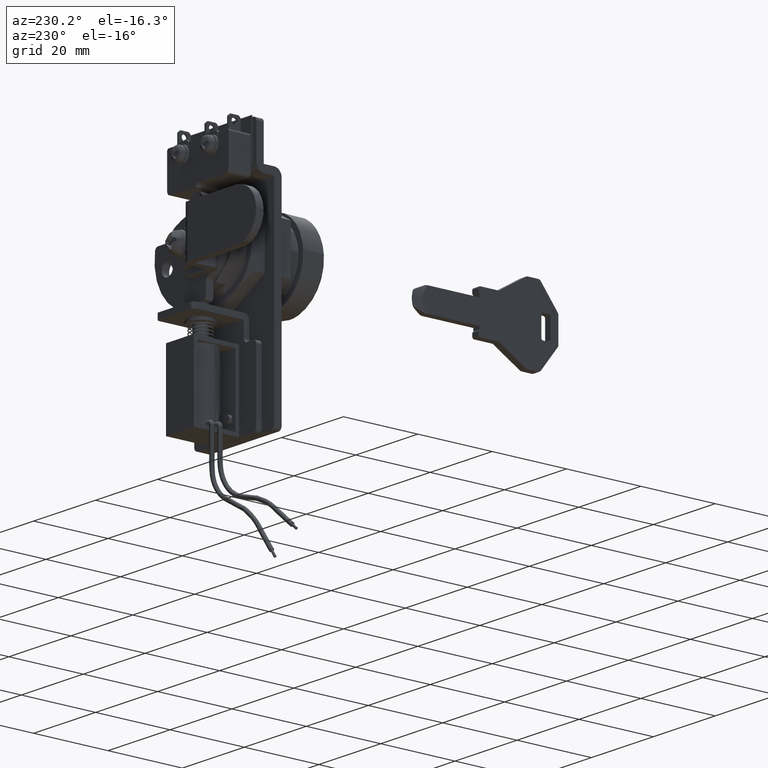
[diagram: clean part render]
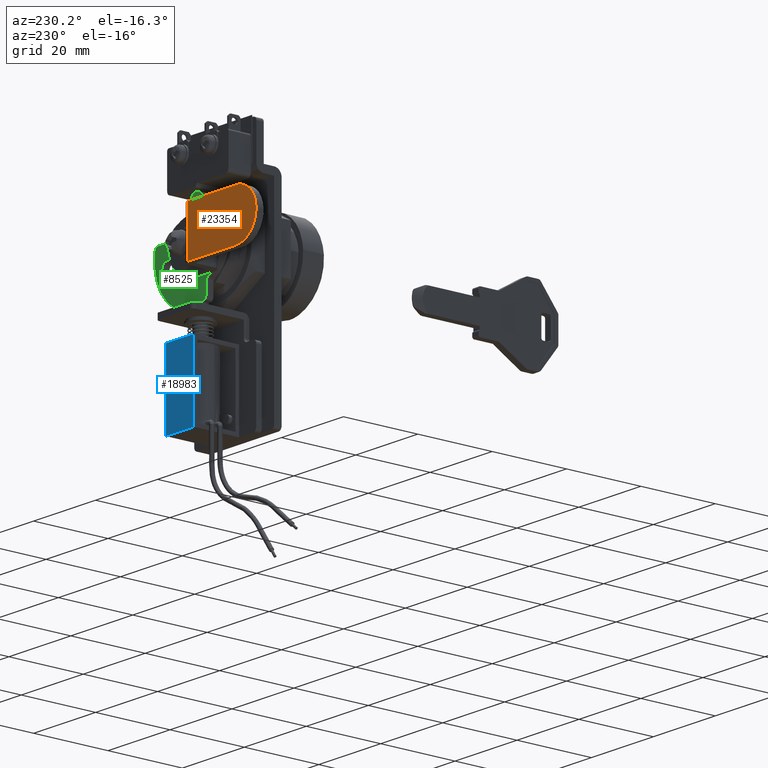
[diagram: same view with three faces highlighted in distinct colors, each labeled with its STEP entity id]
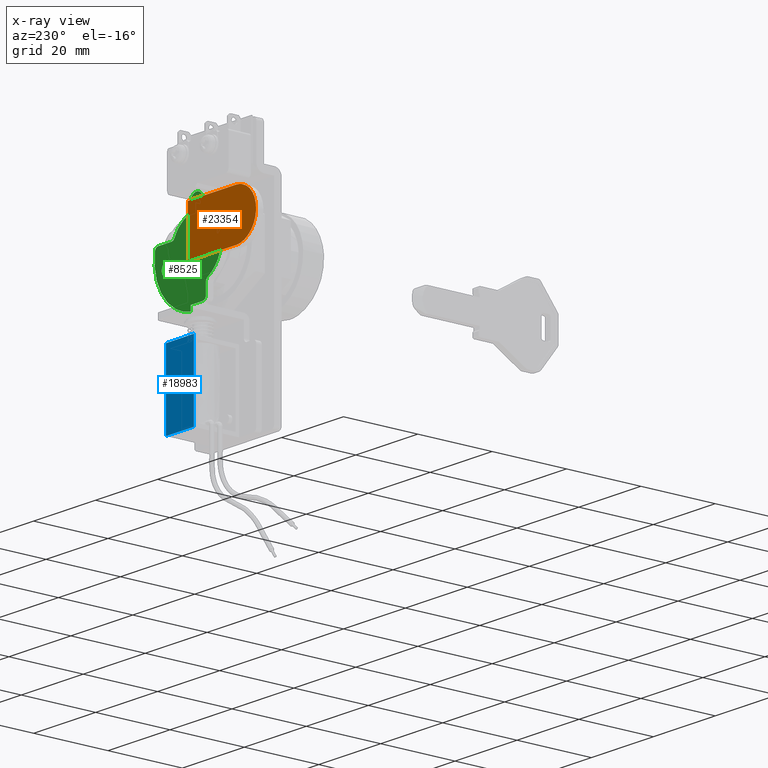
[diagram: x-ray of the same camera — body ghosted, the three highlighted faces saturated]
A machine part, auxiliary view with three faces highlighted in distinct colors.
The next image is the same camera in x-ray (body ghosted, the three faces saturated) — at least one of them is partly hidden behind the body in this view.
Their STEP definitions:

[orange] entity #23354 — the highlighted face is a freeform B-spline surface patch.
#23270=CARTESIAN_POINT('',(-7.999999999829917,28.500000000000000,-6.500000000006500));
#23271=VERTEX_POINT('',#23270);
#23285=CARTESIAN_POINT('',(-7.999999999829917,28.500000000000000,6.499999999993510));
#23286=VERTEX_POINT('',#23285);
#23287=CARTESIAN_POINT('',(-7.999999999829917,28.500000000000000,6.499999999993510));
#23288=CARTESIAN_POINT('',(-7.999999999829917,28.500000000000000,-6.500000000006500));
#23289=QUASI_UNIFORM_CURVE('',1,(#23287,#23288),.UNSPECIFIED.,.F.,.U.);
#23290=EDGE_CURVE('',#23286,#23271,#23289,.T.);
#23309=CARTESIAN_POINT('',(-6.901100042461718,28.500000000000000,7.149349974796989));
#23310=CARTESIAN_POINT('',(-6.901100042461718,28.500000000000000,-7.149350323497150));
#23311=CARTESIAN_POINT('',(-31.098900547453599,28.500000000000000,7.149349974796989));
#23312=CARTESIAN_POINT('',(-31.098900547453599,28.500000000000000,-7.149350323497150));
#23313=B_SPLINE_SURFACE_WITH_KNOTS('',1,1,((#23309,#23311),(#23310,#23312)),.UNSPECIFIED.,.F.,.F.,.U.,(2,2),(2,2),(0.0,14.298700298294140),(0.0,24.197800504991879),.UNSPECIFIED.);
#23314=CARTESIAN_POINT('',(-23.499999999999549,28.500000000000000,-6.500000000006500));
#23315=VERTEX_POINT('',#23314);
#23316=CARTESIAN_POINT('',(-23.499999999999549,28.500000000000000,-6.500000000006500));
#23317=CARTESIAN_POINT('',(-7.999999999829917,28.500000000000000,-6.500000000006500));
#23318=QUASI_UNIFORM_CURVE('',1,(#23316,#23317),.UNSPECIFIED.,.F.,.U.);
#23319=EDGE_CURVE('',#23315,#23271,#23318,.T.);
#23320=ORIENTED_EDGE('',*,*,#23319,.F.);
#23321=CARTESIAN_POINT('',(-23.499999999999549,28.500000000000000,6.499999999993510));
#23322=VERTEX_POINT('',#23321);
#23323=CARTESIAN_POINT('',(-23.499999999999549,28.500000000000000,-6.500000000006500));
#23324=CARTESIAN_POINT('',(-23.952013635505299,28.500000000000000,-6.500071330540076));
#23325=CARTESIAN_POINT('',(-24.723058648324191,28.499999999999950,-6.419220259435664));
#23326=CARTESIAN_POINT('',(-25.900967699437860,28.500000000000110,-6.077693807620869));
#23327=CARTESIAN_POINT('',(-26.835099821321251,28.499999999999890,-5.614625938347420));
#23328=CARTESIAN_POINT('',(-27.763479322157970,28.499999999999940,-4.943592834456332));
#23329=CARTESIAN_POINT('',(-28.594786951503512,28.500000000000089,-4.112371623116004));
#23330=CARTESIAN_POINT('',(-29.280428648152181,28.500000000000011,-3.058427328345500));
#23331=CARTESIAN_POINT('',(-29.732897677301260,28.499999999999950,-1.946631130141247));
#23332=CARTESIAN_POINT('',(-29.984360637582238,28.499999999999979,-0.826990247585767));
#23333=CARTESIAN_POINT('',(-30.025634413449868,28.499999999999758,0.294347679344355));
#23334=CARTESIAN_POINT('',(-29.871348278611372,28.500000000000110,1.430323103936128));
#23335=CARTESIAN_POINT('',(-29.515558531698819,28.500000000000458,2.578043177855035));
#23336=CARTESIAN_POINT('',(-28.947996384438909,28.499999999998291,3.609234722657584));
#23337=CARTESIAN_POINT('',(-28.243174812809109,28.500000000000469,4.478772873022998));
#23338=CARTESIAN_POINT('',(-27.457046647431049,28.500000000000050,5.200168410987944));
#23339=CARTESIAN_POINT('',(-26.463869685067760,28.499999999999151,5.829111425305120));
#23340=CARTESIAN_POINT('',(-25.121783809257781,28.500000000001268,6.356276953019377));
#23341=CARTESIAN_POINT('',(-24.111573078233850,28.499999999999179,6.500261941240807));
#23342=CARTESIAN_POINT('',(-23.499999999999549,28.500000000000000,6.499999999993510));
#23343=B_SPLINE_CURVE_WITH_KNOTS('',3,(#23323,#23324,#23325,#23326,#23327,#23328,#23329,#23330,#23331,#23332,#23333,#23334,#23335,#23336,#23337,#23338,#23339,#23340,#23341,#23342),.UNSPECIFIED.,.F.,.U.,(4,1,1,1,1,1,1,1,1,1,1,1,1,1,1,1,1,4),(0.000000218401240,1.356035108864738,2.313249839943076,3.669282918931529,4.466980740063356,5.743266846159582,7.179112121196841,8.216104307416860,9.332851581983162,10.609035257311270,11.566267223788079,12.762756979925969,14.198607674536021,15.076058370496449,16.113049951000718,17.389351611406379,18.585850995637749,20.420480377470248),.UNSPECIFIED.);
#23344=EDGE_CURVE('',#23315,#23322,#23343,.T.);
#23345=ORIENTED_EDGE('',*,*,#23344,.T.);
#23346=CARTESIAN_POINT('',(-23.499999999999549,28.500000000000000,6.499999999993510));
#23347=CARTESIAN_POINT('',(-7.999999999829917,28.500000000000000,6.499999999993510));
#23348=QUASI_UNIFORM_CURVE('',1,(#23346,#23347),.UNSPECIFIED.,.F.,.U.);
#23349=EDGE_CURVE('',#23322,#23286,#23348,.T.);
#23350=ORIENTED_EDGE('',*,*,#23349,.T.);
#23351=ORIENTED_EDGE('',*,*,#23290,.T.);
#23352=EDGE_LOOP('',(#23320,#23345,#23350,#23351));
#23353=FACE_OUTER_BOUND('',#23352,.T.);
#23354=ADVANCED_FACE('',(#23353),#23313,.T.);

[blue] entity #18983 — the highlighted face is a freeform B-spline surface patch.
#18826=CARTESIAN_POINT('',(-4.500000000030808,24.0,-20.500000000000000));
#18827=VERTEX_POINT('',#18826);
#18833=CARTESIAN_POINT('',(-4.500000000030808,24.0,-40.500000000000000));
#18834=VERTEX_POINT('',#18833);
#18835=CARTESIAN_POINT('',(-4.500000000030808,24.0,-20.500000000000000));
#18836=CARTESIAN_POINT('',(-4.500000000030808,24.0,-40.500000000000000));
#18837=QUASI_UNIFORM_CURVE('',1,(#18835,#18836),.UNSPECIFIED.,.F.,.U.);
#18838=EDGE_CURVE('',#18827,#18834,#18837,.T.);
#18864=CARTESIAN_POINT('',(4.499999999969196,24.0,-40.500000000000000));
#18865=VERTEX_POINT('',#18864);
#18866=CARTESIAN_POINT('',(-4.500000000030808,24.0,-40.500000000000000));
#18867=CARTESIAN_POINT('',(4.499999999969196,24.0,-40.500000000000000));
#18868=QUASI_UNIFORM_CURVE('',1,(#18866,#18867),.UNSPECIFIED.,.F.,.U.);
#18869=EDGE_CURVE('',#18834,#18865,#18868,.T.);
#18945=CARTESIAN_POINT('',(4.499999999969196,24.0,-20.500000000000000));
#18946=VERTEX_POINT('',#18945);
#18954=CARTESIAN_POINT('',(4.499999999969196,24.0,-20.500000000000000));
#18955=CARTESIAN_POINT('',(4.499999999969196,24.0,-40.500000000000000));
#18956=QUASI_UNIFORM_CURVE('',1,(#18954,#18955),.UNSPECIFIED.,.F.,.U.);
#18957=EDGE_CURVE('',#18946,#18865,#18956,.T.);
#18968=CARTESIAN_POINT('',(4.949549982525450,24.0,-41.498999961236123));
#18969=CARTESIAN_POINT('',(4.949549982525450,24.0,-19.500999502322070));
#18970=CARTESIAN_POINT('',(-4.949550223985873,24.0,-41.498999961236123));
#18971=CARTESIAN_POINT('',(-4.949550223985873,24.0,-19.500999502322070));
#18972=B_SPLINE_SURFACE_WITH_KNOTS('',1,1,((#18968,#18970),(#18969,#18971)),.UNSPECIFIED.,.F.,.F.,.U.,(2,2),(2,2),(0.0,21.998000458914049),(0.0,9.899100206511323),.UNSPECIFIED.);
#18973=ORIENTED_EDGE('',*,*,#18957,.T.);
#18974=ORIENTED_EDGE('',*,*,#18869,.F.);
#18975=ORIENTED_EDGE('',*,*,#18838,.F.);
#18976=CARTESIAN_POINT('',(-4.500000000030808,24.0,-20.500000000000000));
#18977=CARTESIAN_POINT('',(4.499999999969196,24.0,-20.500000000000000));
#18978=QUASI_UNIFORM_CURVE('',1,(#18976,#18977),.UNSPECIFIED.,.F.,.U.);
#18979=EDGE_CURVE('',#18827,#18946,#18978,.T.);
#18980=ORIENTED_EDGE('',*,*,#18979,.T.);
#18981=EDGE_LOOP('',(#18973,#18974,#18975,#18980));
#18982=FACE_OUTER_BOUND('',#18981,.T.);
#18983=ADVANCED_FACE('',(#18982),#18972,.F.);

[green] entity #8525 — the highlighted face is a freeform B-spline surface patch.
#6723=CARTESIAN_POINT('',(9.466072999999822,19.500000000000000,-4.336426999975621));
#6724=VERTEX_POINT('',#6723);
#6725=CARTESIAN_POINT('',(7.671621799296061,19.500000000000000,-2.677653372487380));
#6726=VERTEX_POINT('',#6725);
#6727=CARTESIAN_POINT('',(9.466072999999822,19.500000000000000,-4.336426999975621));
#6728=CARTESIAN_POINT('',(7.802170115202599,19.500000000000011,-4.336426999975622));
#6729=CARTESIAN_POINT('',(7.671621799296061,19.500000000000000,-2.677653372487379));
#6737=(BOUNDED_CURVE()B_SPLINE_CURVE(2,(#6727,#6728,#6729),.UNSPECIFIED.,.F.,.U.)B_SPLINE_CURVE_WITH_KNOTS((3,3),(0.0,0.236331300613504),.UNSPECIFIED.)CURVE()GEOMETRIC_REPRESENTATION_ITEM()RATIONAL_B_SPLINE_CURVE((1.0,0.723120658627764,0.969723356131616))REPRESENTATION_ITEM(''));
#6738=EDGE_CURVE('',#6724,#6726,#6737,.T.);
#6779=CARTESIAN_POINT('',(11.260524200703580,19.500000000000000,-2.395200627463860));
#6780=VERTEX_POINT('',#6779);
#6786=CARTESIAN_POINT('',(11.260524200703587,19.500000000000007,-2.395200627463859));
#6787=CARTESIAN_POINT('',(11.266072999999821,19.500000000000000,-2.465704807260527));
#6788=CARTESIAN_POINT('',(11.266072999999819,19.500000000000000,-2.536426999975620));
#6789=CARTESIAN_POINT('',(11.266072999999823,19.500000000000007,-4.336426999975621));
#6790=CARTESIAN_POINT('',(9.466072999999822,19.500000000000000,-4.336426999975621));
#6798=(BOUNDED_CURVE()B_SPLINE_CURVE(2,(#6786,#6787,#6788,#6789,#6790),.UNSPECIFIED.,.F.,.U.)B_SPLINE_CURVE_WITH_KNOTS((3,2,3),(0.736331300613504,0.750000000000000,1.0),.UNSPECIFIED.)CURVE()GEOMETRIC_REPRESENTATION_ITEM()RATIONAL_B_SPLINE_CURVE((0.969723356131616,0.983986122558783,1.0,0.707106781186547,1.0))REPRESENTATION_ITEM(''));
#6799=EDGE_CURVE('',#6780,#6724,#6798,.T.);
#6822=CARTESIAN_POINT('',(9.466072999999822,19.500000000000000,-0.736426999975620));
#6823=VERTEX_POINT('',#6822);
#6824=CARTESIAN_POINT('',(7.671621799296061,19.500000000000000,-2.677653372487380));
#6825=CARTESIAN_POINT('',(7.666072999999821,19.499999999999996,-2.607149192690713));
#6826=CARTESIAN_POINT('',(7.666072999999821,19.500000000000000,-2.536426999975620));
#6827=CARTESIAN_POINT('',(7.666072999999823,19.500000000000007,-0.736426999975620));
#6828=CARTESIAN_POINT('',(9.466072999999822,19.500000000000000,-0.736426999975620));
#6836=(BOUNDED_CURVE()B_SPLINE_CURVE(2,(#6824,#6825,#6826,#6827,#6828),.UNSPECIFIED.,.F.,.U.)B_SPLINE_CURVE_WITH_KNOTS((3,2,3),(0.236331300613504,0.250000000000000,0.500000000000000),.UNSPECIFIED.)CURVE()GEOMETRIC_REPRESENTATION_ITEM()RATIONAL_B_SPLINE_CURVE((0.969723356131616,0.983986122558783,1.0,0.707106781186547,1.0))REPRESENTATION_ITEM(''));
#6837=EDGE_CURVE('',#6726,#6823,#6836,.T.);
#6839=CARTESIAN_POINT('',(9.466072999999822,19.500000000000000,-0.736426999975620));
#6840=CARTESIAN_POINT('',(11.129975884797048,19.500000000000007,-0.736426999975620));
#6841=CARTESIAN_POINT('',(11.260524200703587,19.500000000000007,-2.395200627463859));
#6849=(BOUNDED_CURVE()B_SPLINE_CURVE(2,(#6839,#6840,#6841),.UNSPECIFIED.,.F.,.U.)B_SPLINE_CURVE_WITH_KNOTS((3,3),(0.500000000000000,0.736331300613504),.UNSPECIFIED.)CURVE()GEOMETRIC_REPRESENTATION_ITEM()RATIONAL_B_SPLINE_CURVE((1.0,0.723120658627764,0.969723356131616))REPRESENTATION_ITEM(''));
#6850=EDGE_CURVE('',#6823,#6780,#6849,.T.);
#8301=CARTESIAN_POINT('',(14.678887638432100,19.500000000000000,-14.704842870725811));
#8302=CARTESIAN_POINT('',(-9.078918159071167,19.500000000000000,-14.704842870725811));
#8303=CARTESIAN_POINT('',(14.678887638432100,19.500000000000000,13.270313178618011));
#8304=CARTESIAN_POINT('',(-9.078918159071167,19.500000000000000,13.270313178618011));
#8305=B_SPLINE_SURFACE_WITH_KNOTS('',1,1,((#8301,#8303),(#8302,#8304)),.UNSPECIFIED.,.F.,.F.,.U.,(2,2),(2,2),(0.0,23.757805797503270),(0.0,27.975156049343809),.UNSPECIFIED.);
#8306=CARTESIAN_POINT('',(-6.400000000000180,19.500000000000000,4.800000000024450));
#8307=VERTEX_POINT('',#8306);
#8308=CARTESIAN_POINT('',(-1.600000000000214,19.500000000000000,11.200000000024399));
#8309=VERTEX_POINT('',#8308);
#8310=CARTESIAN_POINT('',(-6.400000000000180,19.500000000000000,4.800000000024450));
#8311=CARTESIAN_POINT('',(-1.600000000000214,19.500000000000000,11.200000000024399));
#8312=QUASI_UNIFORM_CURVE('',1,(#8310,#8311),.UNSPECIFIED.,.F.,.U.);
#8313=EDGE_CURVE('',#8307,#8309,#8312,.T.);
#8314=ORIENTED_EDGE('',*,*,#8313,.T.);
#8315=CARTESIAN_POINT('',(1.999999999999776,19.500000000000000,10.000000000024400));
#8316=VERTEX_POINT('',#8315);
#8317=CARTESIAN_POINT('',(-1.600000000000214,19.500000000000000,11.200000000024399));
#8318=CARTESIAN_POINT('',(-1.514149387605184,19.499999999999989,11.314495619721400));
#8319=CARTESIAN_POINT('',(-1.308797530263169,19.499999999999989,11.534528101037701));
#8320=CARTESIAN_POINT('',(-0.885869875677130,19.500000000000021,11.821206844802440));
#8321=CARTESIAN_POINT('',(-0.386187511186751,19.499999999999979,11.988077070010370));
#8322=CARTESIAN_POINT('',(0.189583553913052,19.500000000000028,12.016304829731300));
#8323=CARTESIAN_POINT('',(0.677486106082978,19.499999999999972,11.905099232166600));
#8324=CARTESIAN_POINT('',(1.118597832080233,19.499999999999840,11.676551723947661));
#8325=CARTESIAN_POINT('',(1.431145185975999,19.500000000000369,11.417249318684030));
#8326=CARTESIAN_POINT('',(1.699919839276079,19.499999999999599,11.080278493274600));
#8327=CARTESIAN_POINT('',(1.930650703769487,19.500000000000409,10.624418607027600));
#8328=CARTESIAN_POINT('',(2.000154644641702,19.499999999999741,10.234206532814230));
#8329=CARTESIAN_POINT('',(1.999999999999776,19.500000000000000,10.000000000024400));
#8330=B_SPLINE_CURVE_WITH_KNOTS('',3,(#8317,#8318,#8319,#8320,#8321,#8322,#8323,#8324,#8325,#8326,#8327,#8328,#8329),.UNSPECIFIED.,.F.,.U.,(4,1,1,1,1,1,1,1,1,1,4),(0.000000405034884,0.429326710090311,0.897751079368990,1.522307589409074,1.990715780732921,2.615205338331544,3.005561816977203,3.473959717546807,3.825266018243439,4.293690700722094,4.996262369480343),.UNSPECIFIED.);
#8331=EDGE_CURVE('',#8309,#8316,#8330,.T.);
#8332=ORIENTED_EDGE('',*,*,#8331,.T.);
#8333=CARTESIAN_POINT('',(1.999999999999776,19.500000000000000,8.485281000024370));
#8334=VERTEX_POINT('',#8333);
#8335=CARTESIAN_POINT('',(1.999999999999776,19.500000000000000,10.000000000024400));
#8336=CARTESIAN_POINT('',(1.999999999999776,19.500000000000000,8.485281000024370));
#8337=QUASI_UNIFORM_CURVE('',1,(#8335,#8336),.UNSPECIFIED.,.F.,.U.);
#8338=EDGE_CURVE('',#8316,#8334,#8337,.T.);
#8339=ORIENTED_EDGE('',*,*,#8338,.T.);
#8340=CARTESIAN_POINT('',(2.666666660651917,19.500000000000000,7.542471960568761));
#8341=VERTEX_POINT('',#8340);
#8342=CARTESIAN_POINT('',(2.666666660651917,19.500000000000000,7.542471960568763));
#8343=CARTESIAN_POINT('',(1.999999999999776,19.499999999999996,7.778174223622350));
#8344=CARTESIAN_POINT('',(1.999999999999776,19.500000000000000,8.485281000024370));
#8352=(BOUNDED_CURVE()B_SPLINE_CURVE(2,(#8342,#8343,#8344),.UNSPECIFIED.,.F.,.U.)CURVE()GEOMETRIC_REPRESENTATION_ITEM()QUASI_UNIFORM_CURVE()RATIONAL_B_SPLINE_CURVE((1.0,0.816496582769291,1.0))REPRESENTATION_ITEM(''));
#8353=EDGE_CURVE('',#8341,#8334,#8352,.T.);
#8354=ORIENTED_EDGE('',*,*,#8353,.F.);
#8355=CARTESIAN_POINT('',(7.166451329415501,19.500000000000000,3.555555560427790));
#8356=VERTEX_POINT('',#8355);
#8357=CARTESIAN_POINT('',(2.666666660651917,19.500000000000000,7.542471960568761));
#8358=CARTESIAN_POINT('',(5.724822763285275,19.500000000000004,6.461250824853780));
#8359=CARTESIAN_POINT('',(7.166451329415501,19.500000000000000,3.555555560427787));
#8367=(BOUNDED_CURVE()B_SPLINE_CURVE(2,(#8357,#8358,#8359),.UNSPECIFIED.,.F.,.U.)CURVE()GEOMETRIC_REPRESENTATION_ITEM()QUASI_UNIFORM_CURVE()RATIONAL_B_SPLINE_CURVE((1.0,0.926722285882977,1.0))REPRESENTATION_ITEM(''));
#8368=EDGE_CURVE('',#8341,#8356,#8367,.T.);
#8369=ORIENTED_EDGE('',*,*,#8368,.T.);
#8370=CARTESIAN_POINT('',(8.062257999999703,19.500000000000000,3.000000000024385));
#8371=VERTEX_POINT('',#8370);
#8372=CARTESIAN_POINT('',(8.062257999999703,19.500000000000000,3.000000000024385));
#8373=CARTESIAN_POINT('',(7.442084245860525,19.500000000000000,3.000000000024385));
#8374=CARTESIAN_POINT('',(7.166451531398105,19.500000000000000,3.555555660639196));
#8382=(BOUNDED_CURVE()B_SPLINE_CURVE(2,(#8372,#8373,#8374),.UNSPECIFIED.,.F.,.U.)CURVE()GEOMETRIC_REPRESENTATION_ITEM()QUASI_UNIFORM_CURVE()RATIONAL_B_SPLINE_CURVE((1.0,0.849836554693074,1.0))REPRESENTATION_ITEM(''));
#8383=EDGE_CURVE('',#8371,#8356,#8382,.T.);
#8384=ORIENTED_EDGE('',*,*,#8383,.F.);
#8385=CARTESIAN_POINT('',(12.440256999999621,19.500000000000000,3.000000000024385));
#8386=VERTEX_POINT('',#8385);
#8387=CARTESIAN_POINT('',(8.062257999999703,19.500000000000000,3.000000000024385));
#8388=CARTESIAN_POINT('',(12.440256999999621,19.500000000000000,3.000000000024385));
#8389=QUASI_UNIFORM_CURVE('',1,(#8387,#8388),.UNSPECIFIED.,.F.,.U.);
#8390=EDGE_CURVE('',#8371,#8386,#8389,.T.);
#8391=ORIENTED_EDGE('',*,*,#8390,.T.);
#8392=CARTESIAN_POINT('',(13.427579001945540,19.500000000000000,2.158730162481760));
#8393=VERTEX_POINT('',#8392);
#8394=CARTESIAN_POINT('',(12.440256999999621,19.500000000000000,3.000000000024385));
#8395=CARTESIAN_POINT('',(13.292329409897075,19.500000000000007,3.000000000024488));
#8396=CARTESIAN_POINT('',(13.427579001945540,19.500000000000000,2.158730162481760));
#8404=(BOUNDED_CURVE()B_SPLINE_CURVE(2,(#8394,#8395,#8396),.UNSPECIFIED.,.F.,.U.)CURVE()GEOMETRIC_REPRESENTATION_ITEM()QUASI_UNIFORM_CURVE()RATIONAL_B_SPLINE_CURVE((1.0,0.761160351850139,1.0))REPRESENTATION_ITEM(''));
#8405=EDGE_CURVE('',#8386,#8393,#8404,.T.);
#8406=ORIENTED_EDGE('',*,*,#8405,.T.);
#8407=CARTESIAN_POINT('',(2.131343178095587,19.500000000000000,-13.431953553244940));
#8408=VERTEX_POINT('',#8407);
#8409=CARTESIAN_POINT('',(13.427579001945540,19.500000000000000,2.158730162481760));
#8410=CARTESIAN_POINT('',(13.618044803462601,19.499999999999989,0.976280886463997));
#8411=CARTESIAN_POINT('',(13.665838751643021,19.500000000000000,-0.793053959483114));
#8412=CARTESIAN_POINT('',(13.273195199369979,19.500000000000011,-3.132282149822169));
#8413=CARTESIAN_POINT('',(12.672228340963530,19.499999999999961,-5.108725503023801));
#8414=CARTESIAN_POINT('',(11.676003536091290,19.499999999999851,-7.113831728636648));
#8415=CARTESIAN_POINT('',(10.342261648939830,19.500000000000121,-8.907631676434429));
#8416=CARTESIAN_POINT('',(8.978381349647293,19.500000000000028,-10.267804215079940));
#8417=CARTESIAN_POINT('',(7.380994981417115,19.499999999999989,-11.487096470341809));
#8418=CARTESIAN_POINT('',(5.145911524516622,19.499999999999979,-12.703483938893680));
#8419=CARTESIAN_POINT('',(3.259245035672059,19.500000000000050,-13.253282961964940));
#8420=CARTESIAN_POINT('',(2.131343178095587,19.500000000000000,-13.431953553244940));
#8421=B_SPLINE_CURVE_WITH_KNOTS('',3,(#8409,#8410,#8411,#8412,#8413,#8414,#8415,#8416,#8417,#8418,#8419,#8420),.UNSPECIFIED.,.F.,.U.,(4,1,1,1,1,1,1,1,1,4),(0.000000066318105,3.592943559314634,5.264092163950185,7.102360734538019,9.776180202834102,11.948631025661300,13.786901910833519,15.541602744799350,17.964771575667509,21.390597792445998),.UNSPECIFIED.);
#8422=EDGE_CURVE('',#8393,#8408,#8421,.T.);
#8423=ORIENTED_EDGE('',*,*,#8422,.T.);
#8424=CARTESIAN_POINT('',(1.899999999999796,19.500000000000000,-13.234424999975721));
#8425=VERTEX_POINT('',#8424);
#8426=CARTESIAN_POINT('',(2.131343178095587,19.500000000000000,-13.431953553244940));
#8427=CARTESIAN_POINT('',(2.106453690849718,19.500000000000021,-13.435923760408469));
#8428=CARTESIAN_POINT('',(2.051491209649083,19.499999999999989,-13.434165610253270));
#8429=CARTESIAN_POINT('',(1.981379853891237,19.499999999999989,-13.401447980106910));
#8430=CARTESIAN_POINT('',(1.918781608349527,19.500000000000011,-13.335070199680549));
#8431=CARTESIAN_POINT('',(1.899866459649379,19.499999999999989,-13.274071898198480));
#8432=CARTESIAN_POINT('',(1.899999999999796,19.500000000000000,-13.234424999975721));
#8433=B_SPLINE_CURVE_WITH_KNOTS('',3,(#8426,#8427,#8428,#8429,#8430,#8431,#8432),.UNSPECIFIED.,.F.,.U.,(4,1,1,1,4),(0.000000559575161,0.075612245891292,0.162067387289107,0.226841671831584,0.345674110332091),.UNSPECIFIED.);
#8434=EDGE_CURVE('',#8408,#8425,#8433,.T.);
#8435=ORIENTED_EDGE('',*,*,#8434,.T.);
#8436=CARTESIAN_POINT('',(1.899999999999866,19.500000000000000,-11.999999999975440));
#8437=VERTEX_POINT('',#8436);
#8438=CARTESIAN_POINT('',(1.899999999999796,19.500000000000000,-13.234424999975721));
#8439=CARTESIAN_POINT('',(1.899999999999866,19.500000000000000,-11.999999999975440));
#8440=QUASI_UNIFORM_CURVE('',1,(#8438,#8439),.UNSPECIFIED.,.F.,.U.);
#8441=EDGE_CURVE('',#8425,#8437,#8440,.T.);
#8442=ORIENTED_EDGE('',*,*,#8441,.T.);
#8443=CARTESIAN_POINT('',(1.296148139885893,19.500000000000000,-12.0));
#8444=VERTEX_POINT('',#8443);
#8445=CARTESIAN_POINT('',(1.899999999999866,19.500000000000000,-11.999999999975440));
#8446=CARTESIAN_POINT('',(1.296148139885893,19.500000000000000,-12.0));
#8447=QUASI_UNIFORM_CURVE('',1,(#8445,#8446),.UNSPECIFIED.,.F.,.U.);
#8448=EDGE_CURVE('',#8437,#8444,#8447,.T.);
#8449=ORIENTED_EDGE('',*,*,#8448,.T.);
#8450=CARTESIAN_POINT('',(-1.296148139885891,19.500000000000000,-11.999999999975600));
#8451=VERTEX_POINT('',#8450);
#8452=CARTESIAN_POINT('',(1.296148139885893,19.500000000000000,-12.0));
#8453=CARTESIAN_POINT('',(-1.296148139885891,19.500000000000000,-11.999999999975600));
#8454=QUASI_UNIFORM_CURVE('',1,(#8452,#8453),.UNSPECIFIED.,.F.,.U.);
#8455=EDGE_CURVE('',#8444,#8451,#8454,.T.);
#8456=ORIENTED_EDGE('',*,*,#8455,.T.);
#8457=CARTESIAN_POINT('',(-2.000000000000339,19.500000000000000,-11.999999999975600));
#8458=VERTEX_POINT('',#8457);
#8459=CARTESIAN_POINT('',(-1.296148139885891,19.500000000000000,-11.999999999975600));
#8460=CARTESIAN_POINT('',(-2.000000000000339,19.500000000000000,-11.999999999975600));
#8461=QUASI_UNIFORM_CURVE('',1,(#8459,#8460),.UNSPECIFIED.,.F.,.U.);
#8462=EDGE_CURVE('',#8451,#8458,#8461,.T.);
#8463=ORIENTED_EDGE('',*,*,#8462,.T.);
#8464=CARTESIAN_POINT('',(-3.000000000000229,19.500000000000000,-10.999999999975600));
#8465=VERTEX_POINT('',#8464);
#8466=CARTESIAN_POINT('',(-2.000000000000339,19.500000000000000,-11.999999999975600));
#8467=CARTESIAN_POINT('',(-3.000000000000224,19.500000000000004,-11.999999999975604));
#8468=CARTESIAN_POINT('',(-3.000000000000224,19.500000000000000,-10.999999999975600));
#8476=(BOUNDED_CURVE()B_SPLINE_CURVE(2,(#8466,#8467,#8468),.UNSPECIFIED.,.F.,.U.)CURVE()GEOMETRIC_REPRESENTATION_ITEM()QUASI_UNIFORM_CURVE()RATIONAL_B_SPLINE_CURVE((1.0,0.707106781186548,1.0))REPRESENTATION_ITEM(''));
#8477=EDGE_CURVE('',#8458,#8465,#8476,.T.);
#8478=ORIENTED_EDGE('',*,*,#8477,.T.);
#8479=CARTESIAN_POINT('',(-3.000000000000229,19.500000000000000,-8.062257999975431));
#8480=VERTEX_POINT('',#8479);
#8481=CARTESIAN_POINT('',(-3.000000000000229,19.500000000000000,-10.999999999975600));
#8482=CARTESIAN_POINT('',(-3.000000000000229,19.500000000000000,-8.062257999975431));
#8483=QUASI_UNIFORM_CURVE('',1,(#8481,#8482),.UNSPECIFIED.,.F.,.U.);
#8484=EDGE_CURVE('',#8465,#8480,#8483,.T.);
#8485=ORIENTED_EDGE('',*,*,#8484,.T.);
#8486=CARTESIAN_POINT('',(-3.555555554949819,19.500000000000000,-7.166451583798510));
#8487=VERTEX_POINT('',#8486);
#8488=CARTESIAN_POINT('',(-3.555555554949821,19.500000000000000,-7.166451583798515));
#8489=CARTESIAN_POINT('',(-3.000000000000229,19.499999999999993,-7.442084327497755));
#8490=CARTESIAN_POINT('',(-3.000000000000229,19.500000000000000,-8.062257999975490));
#8498=(BOUNDED_CURVE()B_SPLINE_CURVE(2,(#8488,#8489,#8490),.UNSPECIFIED.,.F.,.U.)CURVE()GEOMETRIC_REPRESENTATION_ITEM()QUASI_UNIFORM_CURVE()RATIONAL_B_SPLINE_CURVE((1.0,0.849836585777056,1.0))REPRESENTATION_ITEM(''));
#8499=EDGE_CURVE('',#8487,#8480,#8498,.T.);
#8500=ORIENTED_EDGE('',*,*,#8499,.F.);
#8501=CARTESIAN_POINT('',(-3.555555554949819,19.500000000000000,-7.166451583798510));
#8502=CARTESIAN_POINT('',(-3.948315703705822,19.500000000000000,-6.971615020795826));
#8503=CARTESIAN_POINT('',(-4.764474465242683,19.500000000000000,-6.479282683732121));
#8504=CARTESIAN_POINT('',(-5.977857643431683,19.500000000000039,-5.413423551727616));
#8505=CARTESIAN_POINT('',(-6.867928339547247,19.499999999999901,-4.194385720875722));
#8506=CARTESIAN_POINT('',(-7.514902073957035,19.500000000000082,-2.840127964201665));
#8507=CARTESIAN_POINT('',(-7.859152316397370,19.499999999999929,-1.678852312456794));
#8508=CARTESIAN_POINT('',(-8.012813599435107,19.500000000000099,-0.443222925284719));
#8509=CARTESIAN_POINT('',(-7.996837346779296,19.500000000000110,0.765215022120677));
#8510=CARTESIAN_POINT('',(-7.791075704866272,19.499999999999929,1.958089753959070));
#8511=CARTESIAN_POINT('',(-7.306819290936780,19.500000000000188,3.379385814089992));
#8512=CARTESIAN_POINT('',(-6.794750211660213,19.499999999999851,4.273972985759392));
#8513=CARTESIAN_POINT('',(-6.400000000000180,19.500000000000000,4.800000000024450));
#8514=B_SPLINE_CURVE_WITH_KNOTS('',3,(#8501,#8502,#8503,#8504,#8505,#8506,#8507,#8508,#8509,#8510,#8511,#8512,#8513),.UNSPECIFIED.,.F.,.U.,(4,1,1,1,1,1,1,1,1,1,4),(0.000000026413280,1.315305901398451,2.849854368187501,4.822850554480786,5.809350439523984,7.343836585295492,8.439941398249641,9.536043744162761,10.960989394365090,12.057095222022321,14.030057459188949),.UNSPECIFIED.);
#8515=EDGE_CURVE('',#8487,#8307,#8514,.T.);
#8516=ORIENTED_EDGE('',*,*,#8515,.T.);
#8517=EDGE_LOOP('',(#8314,#8332,#8339,#8354,#8369,#8384,#8391,#8406,#8423,#8435,#8442,#8449,#8456,#8463,#8478,#8485,#8500,#8516));
#8518=FACE_OUTER_BOUND('',#8517,.T.);
#8519=ORIENTED_EDGE('',*,*,#6850,.F.);
#8520=ORIENTED_EDGE('',*,*,#6837,.F.);
#8521=ORIENTED_EDGE('',*,*,#6738,.F.);
#8522=ORIENTED_EDGE('',*,*,#6799,.F.);
#8523=EDGE_LOOP('',(#8519,#8520,#8521,#8522));
#8524=FACE_BOUND('',#8523,.T.);
#8525=ADVANCED_FACE('',(#8518,#8524),#8305,.T.);